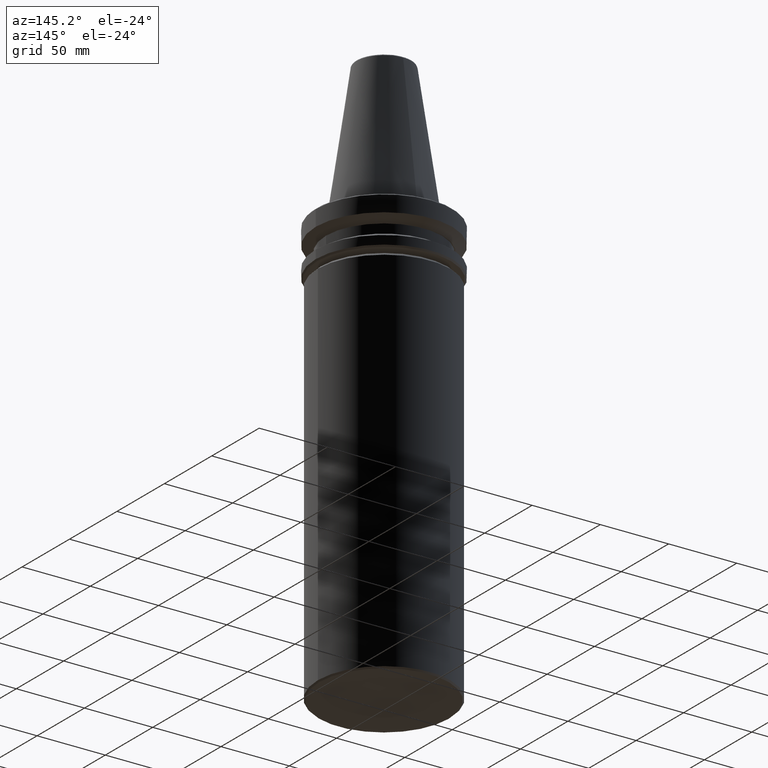
[diagram: clean part render]
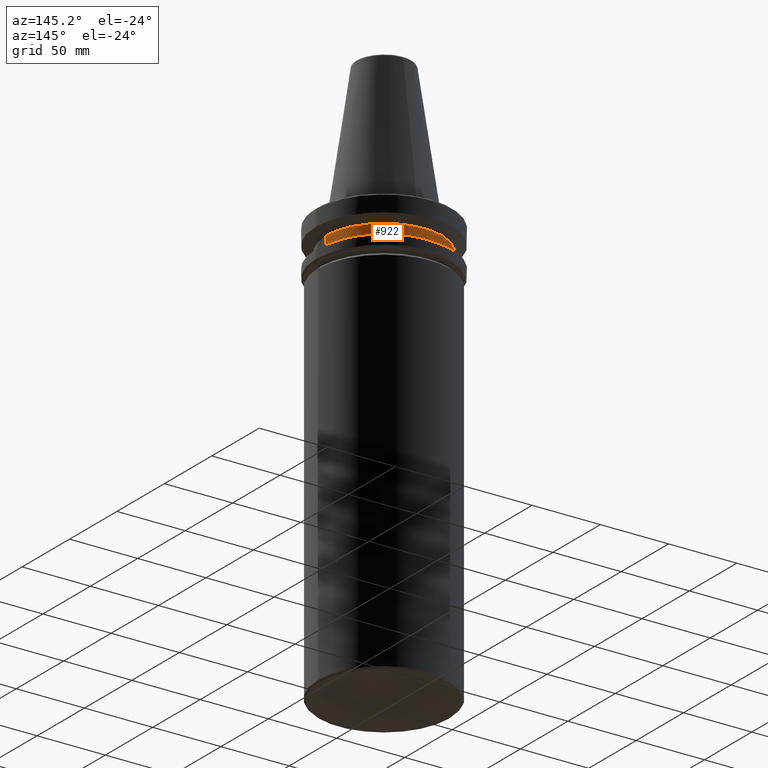
[diagram: same view with one face highlighted and labeled with its STEP entity id]
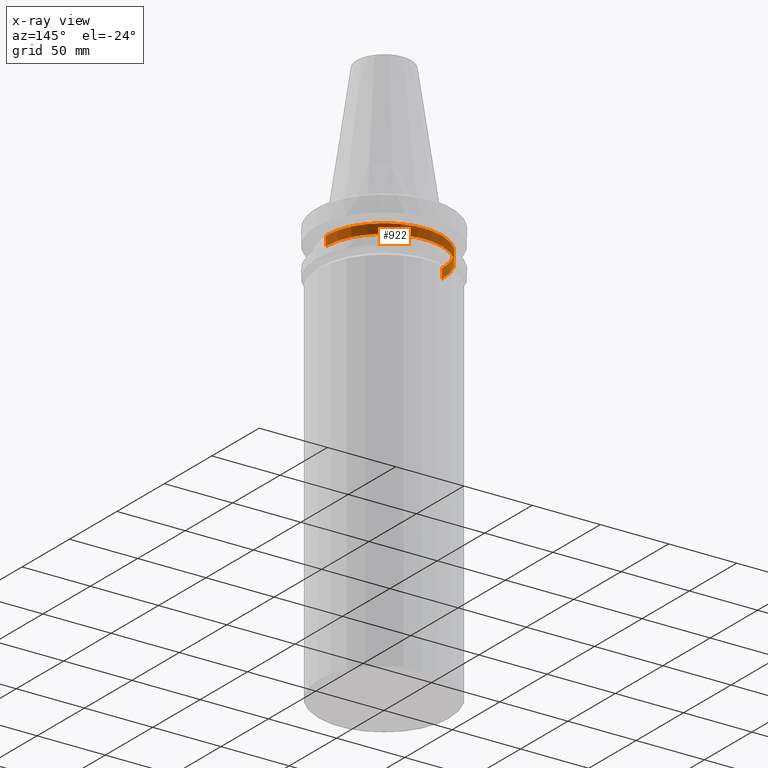
[diagram: x-ray of the same camera — body ghosted, the highlighted face saturated]
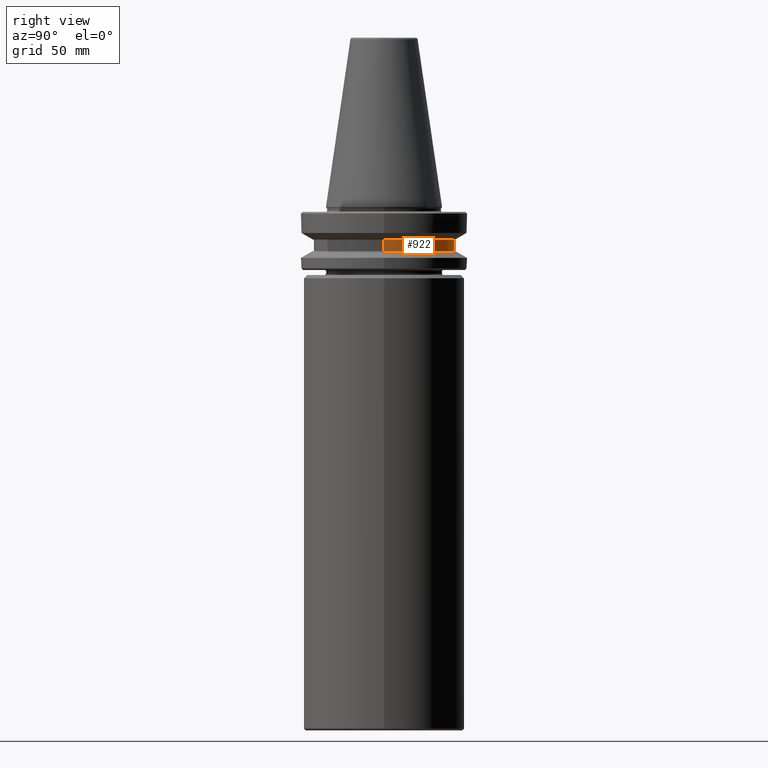
[diagram: same view with one face highlighted and labeled with its STEP entity id]
A machine part, auxiliary view. The second image highlights one B-rep face of the part: STEP entity #922.
The next image is the same camera in x-ray: the body ghosted, the highlighted face saturated — about 5% of this face is hidden behind the body in this view.
A second angle (right view) of the same face is appended — the face is thin or edge-on in the first view.
In plain terms, the highlighted cylindrical surface (partial cylindrical patch) has radius 42.5 mm, axis along (0, 0, 1).
Its self-contained STEP definition (entity closure, byte-faithful):
#14 = CARTESIAN_POINT ( 'NONE',  ( -42.50000000000000000, 5.204748896376250900E-015, -19.70000000000001000 ) ) ;
#28 = AXIS2_PLACEMENT_3D ( 'NONE', #149, #435, #59 ) ;
#34 = ORIENTED_EDGE ( 'NONE', *, *, #954, .T. ) ;
#36 = CYLINDRICAL_SURFACE ( 'NONE', #28, 42.50000000000000000 ) ;
#59 = DIRECTION ( 'NONE',  ( 1.000000000000000000, 0.0000000000000000000, 0.0000000000000000000 ) ) ;
#106 = DIRECTION ( 'NONE',  ( -0.0000000000000000000, -0.0000000000000000000, -1.000000000000000000 ) ) ;
#121 = CIRCLE ( 'NONE', #226, 42.50000000000000000 ) ;
#144 = EDGE_CURVE ( 'NONE', #613, #1069, #182, .T. ) ;
#146 = FACE_OUTER_BOUND ( 'NONE', #299, .T. ) ;
#149 = CARTESIAN_POINT ( 'NONE',  ( 0.0000000000000000000, 0.0000000000000000000, 124.5046326327850600 ) ) ;
#179 = CARTESIAN_POINT ( 'NONE',  ( 42.50000000000000000, 0.0000000000000000000, -26.69999999999998900 ) ) ;
#182 = LINE ( 'NONE', #1227, #212 ) ;
#212 = VECTOR ( 'NONE', #1035, 1000.000000000000000 ) ;
#226 = AXIS2_PLACEMENT_3D ( 'NONE', #677, #106, #783 ) ;
#256 = LINE ( 'NONE', #835, #519 ) ;
#280 = EDGE_CURVE ( 'NONE', #428, #1069, #121, .T. ) ;
#299 = EDGE_LOOP ( 'NONE', ( #344, #34, #1207, #1255 ) ) ;
#344 = ORIENTED_EDGE ( 'NONE', *, *, #620, .T. ) ;
#352 = DIRECTION ( 'NONE',  ( 0.0000000000000000000, 0.0000000000000000000, 1.000000000000000000 ) ) ;
#385 = CIRCLE ( 'NONE', #1089, 42.50000000000000000 ) ;
#428 = VERTEX_POINT ( 'NONE', #14 ) ;
#435 = DIRECTION ( 'NONE',  ( 0.0000000000000000000, 0.0000000000000000000, 1.000000000000000000 ) ) ;
#519 = VECTOR ( 'NONE', #1053, 1000.000000000000000 ) ;
#580 = VERTEX_POINT ( 'NONE', #805 ) ;
#613 = VERTEX_POINT ( 'NONE', #179 ) ;
#620 = EDGE_CURVE ( 'NONE', #613, #580, #385, .T. ) ;
#677 = CARTESIAN_POINT ( 'NONE',  ( 0.0000000000000000000, 0.0000000000000000000, -19.70000000000001000 ) ) ;
#783 = DIRECTION ( 'NONE',  ( 1.000000000000000000, 0.0000000000000000000, 0.0000000000000000000 ) ) ;
#805 = CARTESIAN_POINT ( 'NONE',  ( -42.50000000000000000, 5.204748896376250900E-015, -26.69999999999998900 ) ) ;
#806 = CARTESIAN_POINT ( 'NONE',  ( 42.50000000000000000, 0.0000000000000000000, -19.70000000000001000 ) ) ;
#835 = CARTESIAN_POINT ( 'NONE',  ( -42.50000000000000000, 5.204748896376250900E-015, 124.5046326327850600 ) ) ;
#922 = ADVANCED_FACE ( 'NONE', ( #146 ), #36, .T. ) ;
#944 = CARTESIAN_POINT ( 'NONE',  ( 0.0000000000000000000, 0.0000000000000000000, -26.69999999999998900 ) ) ;
#954 = EDGE_CURVE ( 'NONE', #580, #428, #256, .T. ) ;
#1035 = DIRECTION ( 'NONE',  ( 0.0000000000000000000, 0.0000000000000000000, 1.000000000000000000 ) ) ;
#1053 = DIRECTION ( 'NONE',  ( 0.0000000000000000000, 0.0000000000000000000, 1.000000000000000000 ) ) ;
#1061 = DIRECTION ( 'NONE',  ( 1.000000000000000000, 0.0000000000000000000, 0.0000000000000000000 ) ) ;
#1069 = VERTEX_POINT ( 'NONE', #806 ) ;
#1089 = AXIS2_PLACEMENT_3D ( 'NONE', #944, #352, #1061 ) ;
#1207 = ORIENTED_EDGE ( 'NONE', *, *, #280, .T. ) ;
#1227 = CARTESIAN_POINT ( 'NONE',  ( 42.50000000000000000, 0.0000000000000000000, 124.5046326327850600 ) ) ;
#1255 = ORIENTED_EDGE ( 'NONE', *, *, #144, .F. ) ;